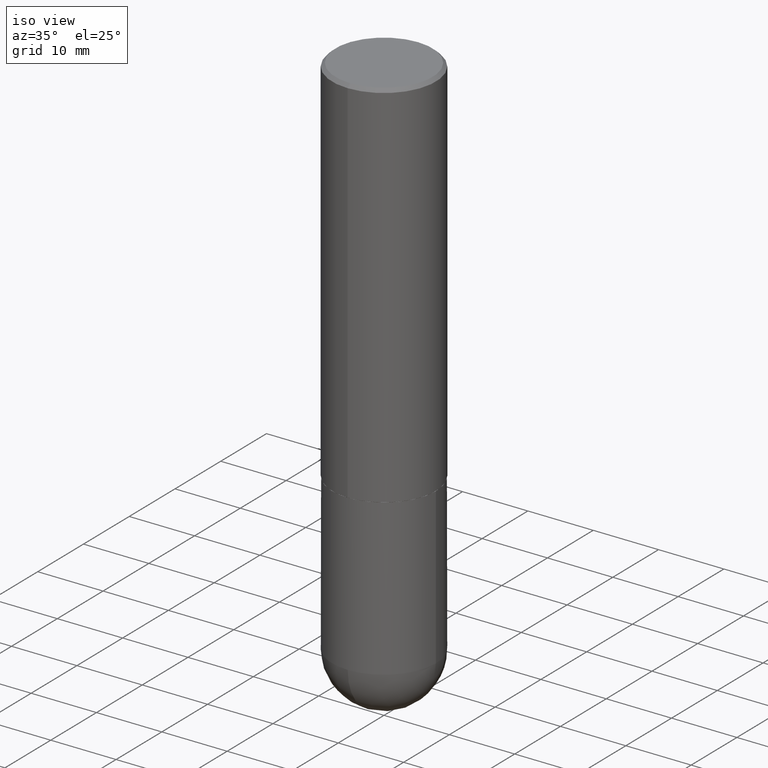
[diagram: clean part render]
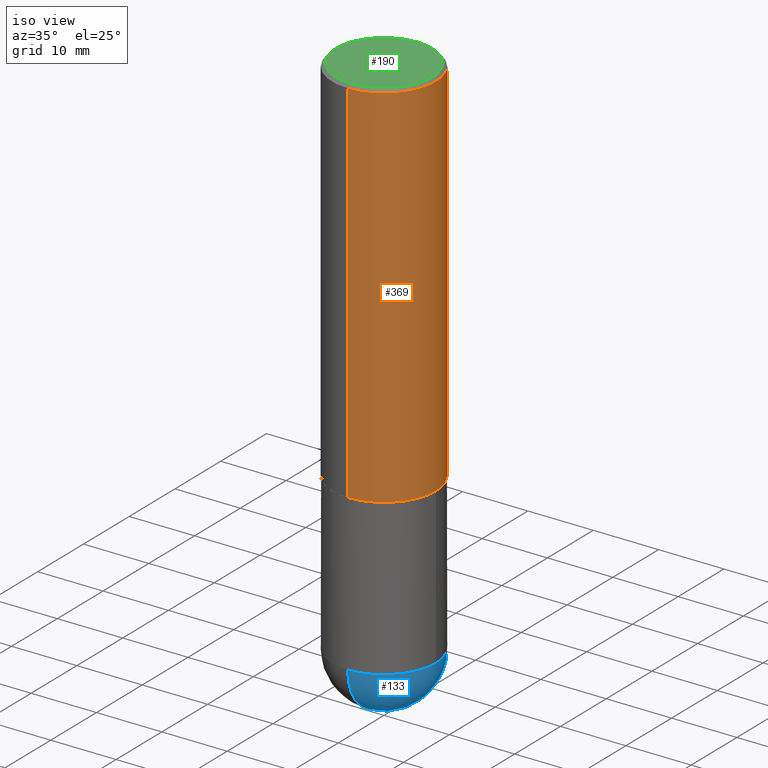
[diagram: same view with three faces highlighted in distinct colors, each labeled with its STEP entity id]
A machine part, iso view with three faces highlighted in distinct colors.
Their STEP definitions:

[orange] entity #369 — the highlighted cylindrical surface (partial cylindrical patch) has radius 7.9375 mm, axis along (-0, 0, 1).
#3 = DIRECTION ( 'NONE',  ( -2.444858820347609683E-29, 3.492354873280721784E-15, 1.000000000000000000 ) ) ;
#11 = DIRECTION ( 'NONE',  ( -2.444858820347609963E-29, 3.492354873280721389E-15, 1.000000000000000000 ) ) ;
#17 = DIRECTION ( 'NONE',  ( -6.982962677686265922E-15, -1.000000000000000000, 3.496765431890253764E-15 ) ) ;
#25 = CARTESIAN_POINT ( 'NONE',  ( 2.220446049250313475E-15, 0.3125000000000001665, -1.091360897900225903E-15 ) ) ;
#58 = CARTESIAN_POINT ( 'NONE',  ( -2.182175836776959136E-15, -0.3125000000000001665, 1.091360897900225903E-15 ) ) ;
#59 = VERTEX_POINT ( 'NONE', #281 ) ;
#60 = LINE ( 'NONE', #25, #149 ) ;
#64 = CARTESIAN_POINT ( 'NONE',  ( 0.000000000000000000, 0.000000000000000000, 0.000000000000000000 ) ) ;
#68 = ORIENTED_EDGE ( 'NONE', *, *, #293, .T. ) ;
#73 = ORIENTED_EDGE ( 'NONE', *, *, #75, .F. ) ;
#75 = EDGE_CURVE ( 'NONE', #203, #361, #123, .T. ) ;
#77 = CARTESIAN_POINT ( 'NONE',  ( 5.498487486961774276E-29, -7.854306110008341744E-15, -2.248999999999999666 ) ) ;
#83 = CIRCLE ( 'NONE', #146, 0.3125000000000000000 ) ;
#123 = LINE ( 'NONE', #58, #215 ) ;
#137 = DIRECTION ( 'NONE',  ( -6.982962677686265133E-15, -1.000000000000000000, 3.496765431890256920E-15 ) ) ;
#146 = AXIS2_PLACEMENT_3D ( 'NONE', #360, #165, #137 ) ;
#147 = EDGE_CURVE ( 'NONE', #203, #192, #269, .T. ) ;
#149 = VECTOR ( 'NONE', #183, 39.37007874015748143 ) ;
#160 = DIRECTION ( 'NONE',  ( -2.444858820347609963E-29, 3.492354873280721389E-15, 1.000000000000000000 ) ) ;
#165 = DIRECTION ( 'NONE',  ( -2.444858820347609963E-29, 3.492354873280721389E-15, 1.000000000000000000 ) ) ;
#183 = DIRECTION ( 'NONE',  ( -2.444858820347609683E-29, 3.492354873280721784E-15, 1.000000000000000000 ) ) ;
#192 = VERTEX_POINT ( 'NONE', #231 ) ;
#196 = EDGE_CURVE ( 'NONE', #361, #59, #83, .T. ) ;
#203 = VERTEX_POINT ( 'NONE', #388 ) ;
#215 = VECTOR ( 'NONE', #3, 39.37007874015748143 ) ;
#228 = ORIENTED_EDGE ( 'NONE', *, *, #196, .F. ) ;
#231 = CARTESIAN_POINT ( 'NONE',  ( 2.220446049250341874E-15, 0.3124999999999924505, -2.249000000000000998 ) ) ;
#256 = DIRECTION ( 'NONE',  ( -6.982962677686265133E-15, -1.000000000000000000, 3.492354873280720995E-15 ) ) ;
#269 = CIRCLE ( 'NONE', #340, 0.3125000000000002776 ) ;
#275 = ORIENTED_EDGE ( 'NONE', *, *, #147, .T. ) ;
#281 = CARTESIAN_POINT ( 'NONE',  ( 2.182175836776958741E-15, 0.3124999999999999445, -0.02000000000000116615 ) ) ;
#285 = EDGE_LOOP ( 'NONE', ( #275, #68, #228, #73 ) ) ;
#293 = EDGE_CURVE ( 'NONE', #192, #59, #60, .T. ) ;
#340 = AXIS2_PLACEMENT_3D ( 'NONE', #77, #160, #17 ) ;
#350 = CARTESIAN_POINT ( 'NONE',  ( -2.143905624303602824E-15, -0.3125000000000000555, -0.01999999999999898040 ) ) ;
#360 = CARTESIAN_POINT ( 'NONE',  ( 4.889717640695238389E-31, -6.984709746561468318E-17, -0.02000000000000007327 ) ) ;
#361 = VERTEX_POINT ( 'NONE', #350 ) ;
#369 = ADVANCED_FACE ( 'NONE', ( #378 ), #381, .T. ) ;
#376 = AXIS2_PLACEMENT_3D ( 'NONE', #64, #11, #256 ) ;
#378 = FACE_OUTER_BOUND ( 'NONE', #285, .T. ) ;
#381 = CYLINDRICAL_SURFACE ( 'NONE', #376, 0.3125000000000001665 ) ;
#388 = CARTESIAN_POINT ( 'NONE',  ( -2.182175836776905099E-15, -0.3125000000000081601, -2.248999999999998778 ) ) ;

[blue] entity #133 — the highlighted spherical surface has radius 7.9375 mm.
#5 = DIRECTION ( 'NONE',  ( 1.000000000000000000, -6.982962677686265922E-15, 4.883557194083112340E-29 ) ) ;
#33 = AXIS2_PLACEMENT_3D ( 'NONE', #227, #298, #305 ) ;
#41 = DIRECTION ( 'NONE',  ( -7.105427357601000281E-15, -1.000000000000000000, 0.000000000000000000 ) ) ;
#44 = DIRECTION ( 'NONE',  ( -1.000000000000000000, 6.982962677686265922E-15, -4.883557194083112901E-29 ) ) ;
#56 = EDGE_CURVE ( 'NONE', #250, #326, #118, .T. ) ;
#62 = CARTESIAN_POINT ( 'NONE',  ( 7.463812041801236655E-29, -1.160327913570257494E-14, -3.187500000000000000 ) ) ;
#85 = CARTESIAN_POINT ( 'NONE',  ( 8.241383017002520278E-29, -1.267523194785438148E-14, -3.500000000000000444 ) ) ;
#101 = CARTESIAN_POINT ( 'NONE',  ( 7.463812041801236655E-29, -1.160327913570257494E-14, -3.187500000000000000 ) ) ;
#118 = CIRCLE ( 'NONE', #370, 0.3125000000000000000 ) ;
#119 = EDGE_CURVE ( 'NONE', #267, #326, #394, .T. ) ;
#122 = CARTESIAN_POINT ( 'NONE',  ( 0.3125000000000000000, -1.167464072675676384E-14, -3.187500000000000000 ) ) ;
#132 = DIRECTION ( 'NONE',  ( 6.982962677686265922E-15, 1.000000000000000000, 0.000000000000000000 ) ) ;
#133 = ADVANCED_FACE ( 'NONE', ( #315 ), #195, .T. ) ;
#135 = ORIENTED_EDGE ( 'NONE', *, *, #56, .F. ) ;
#144 = ORIENTED_EDGE ( 'NONE', *, *, #182, .F. ) ;
#168 = DIRECTION ( 'NONE',  ( 6.982962677686265922E-15, 1.000000000000000000, -3.496765431890253764E-15 ) ) ;
#170 = CARTESIAN_POINT ( 'NONE',  ( 7.463812041801236655E-29, -1.160327913570257494E-14, -3.187500000000000000 ) ) ;
#171 = AXIS2_PLACEMENT_3D ( 'NONE', #170, #44, #168 ) ;
#181 = CARTESIAN_POINT ( 'NONE',  ( 7.794931819715121781E-29, -1.112909676756252622E-14, -3.187500000000000000 ) ) ;
#182 = EDGE_CURVE ( 'NONE', #267, #362, #333, .T. ) ;
#187 = DIRECTION ( 'NONE',  ( -2.445468806185136597E-29, 3.491481338843145583E-15, 1.000000000000000000 ) ) ;
#195 = SPHERICAL_SURFACE ( 'NONE', #171, 0.3125000000000002776 ) ;
#204 = EDGE_CURVE ( 'NONE', #362, #250, #308, .T. ) ;
#212 = AXIS2_PLACEMENT_3D ( 'NONE', #101, #292, #41 ) ;
#227 = CARTESIAN_POINT ( 'NONE',  ( 7.794931819715121781E-29, -1.112909676756252622E-14, -3.187500000000000000 ) ) ;
#244 = DIRECTION ( 'NONE',  ( 1.000000000000000000, -6.982962677686269077E-15, 0.000000000000000000 ) ) ;
#250 = VERTEX_POINT ( 'NONE', #122 ) ;
#267 = VERTEX_POINT ( 'NONE', #85 ) ;
#274 = CARTESIAN_POINT ( 'NONE',  ( -2.220446049250237350E-15, -0.3125000000000114908, -3.187499999999998668 ) ) ;
#286 = CARTESIAN_POINT ( 'NONE',  ( 2.182175836777035261E-15, 0.3124999999999887867, -3.187500000000000888 ) ) ;
#288 = AXIS2_PLACEMENT_3D ( 'NONE', #62, #5, #132 ) ;
#292 = DIRECTION ( 'NONE',  ( -1.000000000000000000, 7.105427357601001070E-15, -4.926315508542082329E-29 ) ) ;
#295 = EDGE_LOOP ( 'NONE', ( #144, #354, #135, #323 ) ) ;
#298 = DIRECTION ( 'NONE',  ( -2.445468806185136597E-29, 3.491481338843145583E-15, 1.000000000000000000 ) ) ;
#305 = DIRECTION ( 'NONE',  ( 1.000000000000000000, -6.982962677686269077E-15, 0.000000000000000000 ) ) ;
#308 = CIRCLE ( 'NONE', #33, 0.3125000000000000000 ) ;
#315 = FACE_OUTER_BOUND ( 'NONE', #295, .T. ) ;
#323 = ORIENTED_EDGE ( 'NONE', *, *, #204, .F. ) ;
#326 = VERTEX_POINT ( 'NONE', #286 ) ;
#333 = CIRCLE ( 'NONE', #212, 0.3125000000000002776 ) ;
#354 = ORIENTED_EDGE ( 'NONE', *, *, #119, .T. ) ;
#362 = VERTEX_POINT ( 'NONE', #274 ) ;
#370 = AXIS2_PLACEMENT_3D ( 'NONE', #181, #187, #244 ) ;
#394 = CIRCLE ( 'NONE', #288, 0.3125000000000002776 ) ;

[green] entity #190 — the highlighted planar face has unit normal (0, -0, -1).
#8 = DIRECTION ( 'NONE',  ( -2.444858820347609963E-29, 3.492354873280721389E-15, 1.000000000000000000 ) ) ;
#20 = ORIENTED_EDGE ( 'NONE', *, *, #152, .T. ) ;
#23 = AXIS2_PLACEMENT_3D ( 'NONE', #89, #91, #223 ) ;
#80 = CIRCLE ( 'NONE', #407, 0.2924999999999997602 ) ;
#89 = CARTESIAN_POINT ( 'NONE',  ( -3.137019953351439440E-45, 4.481071393769925691E-31, 1.283108835260032635E-16 ) ) ;
#91 = DIRECTION ( 'NONE',  ( -2.444858820347609963E-29, 3.492354873280721389E-15, 1.000000000000000000 ) ) ;
#105 = DIRECTION ( 'NONE',  ( 6.982962677686265922E-15, 1.000000000000000000, -3.492354873280721784E-15 ) ) ;
#130 = VERTEX_POINT ( 'NONE', #191 ) ;
#141 = DIRECTION ( 'NONE',  ( -6.982962677686266711E-15, -1.000000000000000000, 3.492354873280721784E-15 ) ) ;
#152 = EDGE_CURVE ( 'NONE', #248, #130, #80, .T. ) ;
#153 = ORIENTED_EDGE ( 'NONE', *, *, #384, .T. ) ;
#158 = DIRECTION ( 'NONE',  ( 2.444858820347609403E-29, -3.492354873280721784E-15, -1.000000000000000000 ) ) ;
#190 = ADVANCED_FACE ( 'NONE', ( #261 ), #287, .F. ) ;
#191 = CARTESIAN_POINT ( 'NONE',  ( 2.112346210000094654E-15, 0.2924999999999997602, -8.932029169086070190E-16 ) ) ;
#199 = CIRCLE ( 'NONE', #23, 0.2924999999999997602 ) ;
#222 = EDGE_LOOP ( 'NONE', ( #153, #20 ) ) ;
#223 = DIRECTION ( 'NONE',  ( -6.982962677686266711E-15, -1.000000000000000000, 3.492354873280721784E-15 ) ) ;
#248 = VERTEX_POINT ( 'NONE', #249 ) ;
#249 = CARTESIAN_POINT ( 'NONE',  ( -2.075300644325887099E-15, -0.2924999999999997602, 1.149824683960613595E-15 ) ) ;
#261 = FACE_OUTER_BOUND ( 'NONE', #222, .T. ) ;
#272 = AXIS2_PLACEMENT_3D ( 'NONE', #393, #158, #105 ) ;
#283 = CARTESIAN_POINT ( 'NONE',  ( -3.137019953351439440E-45, 4.481071393769925691E-31, 1.283108835260032635E-16 ) ) ;
#287 = PLANE ( 'NONE',  #272 ) ;
#384 = EDGE_CURVE ( 'NONE', #130, #248, #199, .T. ) ;
#393 = CARTESIAN_POINT ( 'NONE',  ( 2.042516583223231356E-15, 0.2924999999999997602, -9.573583586716086631E-16 ) ) ;
#407 = AXIS2_PLACEMENT_3D ( 'NONE', #283, #8, #141 ) ;